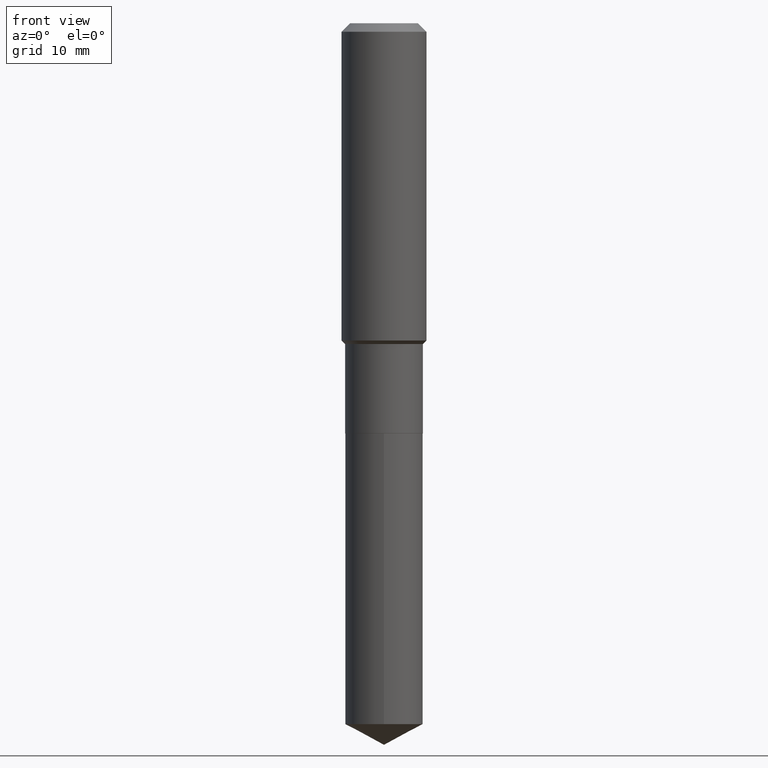
[diagram: clean part render]
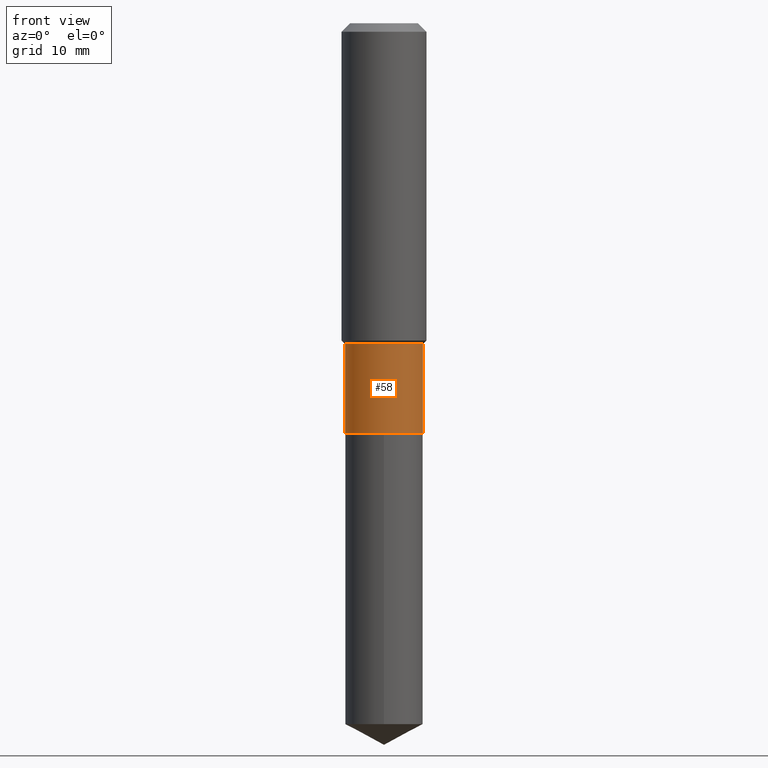
[diagram: same view with one face highlighted and labeled with its STEP entity id]
A machine part, front view. The second image highlights one B-rep face of the part: STEP entity #58.
In plain terms, the highlighted cylindrical surface (partial cylindrical patch) has radius 5.5004 mm, axis along (-0, 0, 1).
Its self-contained STEP definition (entity closure, byte-faithful):
#7 = DIRECTION ( 'NONE',  ( 1.000000000000000000, -6.982962677686264344E-15, 0.000000000000000000 ) ) ;
#11 = LINE ( 'NONE', #312, #306 ) ;
#36 = VECTOR ( 'NONE', #89, 39.37007874015748143 ) ;
#45 = CARTESIAN_POINT ( 'NONE',  ( 4.365895459682324685E-29, -6.233341634236667556E-15, -1.785299999999999887 ) ) ;
#47 = CARTESIAN_POINT ( 'NONE',  ( 0.000000000000000000, 0.000000000000000000, 0.000000000000000000 ) ) ;
#54 = ORIENTED_EDGE ( 'NONE', *, *, #192, .T. ) ;
#58 = ADVANCED_FACE ( 'NONE', ( #441 ), #397, .T. ) ;
#86 = CARTESIAN_POINT ( 'NONE',  ( 0.2165499999999999370, -7.745502202089628379E-15, -1.785299999999999887 ) ) ;
#89 = DIRECTION ( 'NONE',  ( -2.445468806185136877E-29, 3.491481338843145188E-15, 1.000000000000000000 ) ) ;
#90 = CARTESIAN_POINT ( 'NONE',  ( -0.2165499999999999370, -5.563341897052346134E-15, -1.785299999999999887 ) ) ;
#114 = EDGE_CURVE ( 'NONE', #308, #278, #11, .T. ) ;
#150 = AXIS2_PLACEMENT_3D ( 'NONE', #45, #326, #187 ) ;
#153 = ORIENTED_EDGE ( 'NONE', *, *, #114, .F. ) ;
#162 = CARTESIAN_POINT ( 'NONE',  ( -0.2165500000000000203, -5.563341897052346134E-15, -2.282900000000000151 ) ) ;
#169 = VERTEX_POINT ( 'NONE', #86 ) ;
#184 = AXIS2_PLACEMENT_3D ( 'NONE', #47, #424, #383 ) ;
#187 = DIRECTION ( 'NONE',  ( 1.000000000000000000, -6.982962677686266711E-15, 0.000000000000000000 ) ) ;
#189 = LINE ( 'NONE', #340, #36 ) ;
#192 = EDGE_CURVE ( 'NONE', #228, #169, #189, .T. ) ;
#196 = CIRCLE ( 'NONE', #150, 0.2165499999999999370 ) ;
#211 = EDGE_LOOP ( 'NONE', ( #153, #367, #54, #445 ) ) ;
#228 = VERTEX_POINT ( 'NONE', #419 ) ;
#250 = AXIS2_PLACEMENT_3D ( 'NONE', #265, #428, #7 ) ;
#265 = CARTESIAN_POINT ( 'NONE',  ( 5.582760737640048882E-29, -7.970702748445017327E-15, -2.282900000000000151 ) ) ;
#278 = VERTEX_POINT ( 'NONE', #90 ) ;
#306 = VECTOR ( 'NONE', #344, 39.37007874015748143 ) ;
#308 = VERTEX_POINT ( 'NONE', #162 ) ;
#312 = CARTESIAN_POINT ( 'NONE',  ( -0.2165499999999999647, 1.538680294288496702E-15, -1.065195393794699783E-29 ) ) ;
#326 = DIRECTION ( 'NONE',  ( -2.445468806185136597E-29, 3.491481338843145583E-15, 1.000000000000000000 ) ) ;
#340 = CARTESIAN_POINT ( 'NONE',  ( 0.2165499999999999647, -1.512160567852960823E-15, 1.055936080798609895E-29 ) ) ;
#344 = DIRECTION ( 'NONE',  ( -2.445468806185136877E-29, 3.491481338843145188E-15, 1.000000000000000000 ) ) ;
#367 = ORIENTED_EDGE ( 'NONE', *, *, #473, .T. ) ;
#383 = DIRECTION ( 'NONE',  ( 1.000000000000000000, -6.982962677686266711E-15, 4.876176775795936353E-29 ) ) ;
#397 = CYLINDRICAL_SURFACE ( 'NONE', #184, 0.2165499999999999647 ) ;
#419 = CARTESIAN_POINT ( 'NONE',  ( 0.2165500000000000203, -9.482863316297978150E-15, -2.282900000000000151 ) ) ;
#424 = DIRECTION ( 'NONE',  ( -2.445468806185136597E-29, 3.491481338843145583E-15, 1.000000000000000000 ) ) ;
#428 = DIRECTION ( 'NONE',  ( -2.445468806185136597E-29, 3.491481338843145583E-15, 1.000000000000000000 ) ) ;
#441 = FACE_OUTER_BOUND ( 'NONE', #211, .T. ) ;
#443 = EDGE_CURVE ( 'NONE', #278, #169, #196, .T. ) ;
#445 = ORIENTED_EDGE ( 'NONE', *, *, #443, .F. ) ;
#473 = EDGE_CURVE ( 'NONE', #308, #228, #482, .T. ) ;
#482 = CIRCLE ( 'NONE', #250, 0.2165500000000000203 ) ;